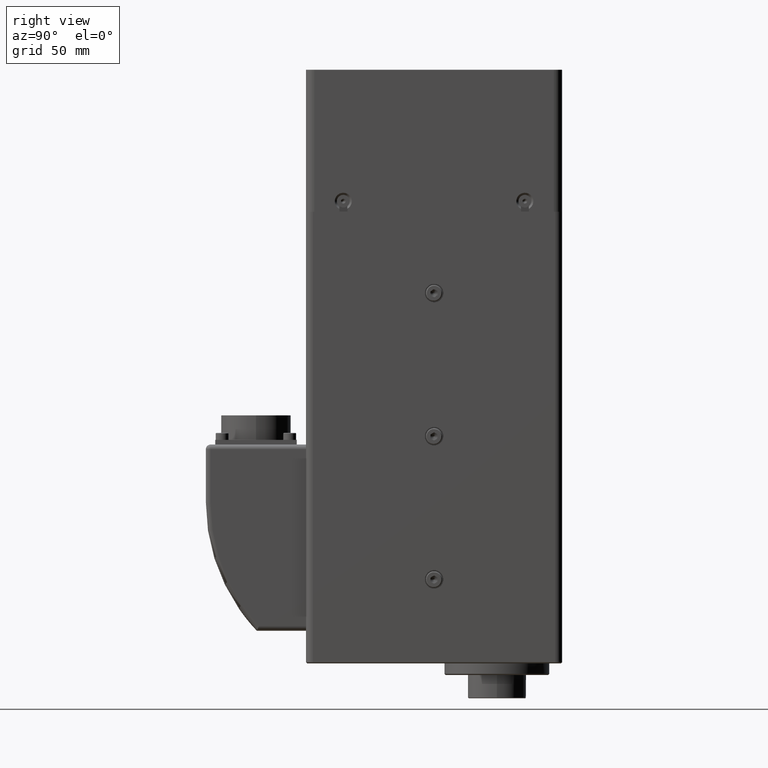
[diagram: clean part render]
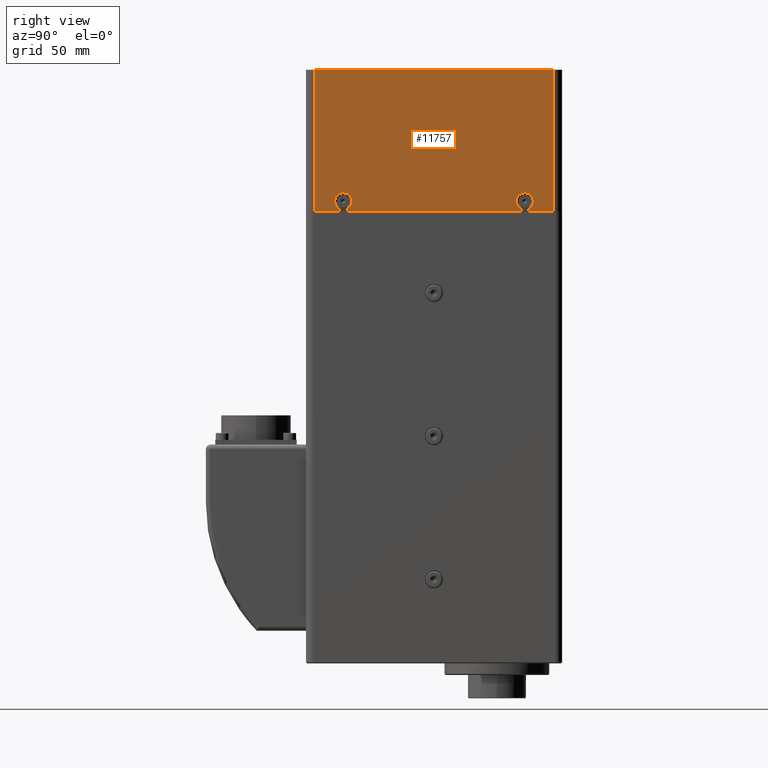
[diagram: same view with one face highlighted and labeled with its STEP entity id]
A machine part, right view. The second image highlights one B-rep face of the part: STEP entity #11757.
In plain terms, the highlighted planar face has unit normal (1, 0, 0).
Its self-contained STEP definition (entity closure, byte-faithful):
#1039=CIRCLE('',#12885,3.65);
#1040=CIRCLE('',#12887,3.65000000000002);
#1636=FACE_OUTER_BOUND('',#2415,.T.);
#2415=EDGE_LOOP('',(#9358,#9359,#9360,#9361,#9362,#9363,#9364,#9365,#9366,
#9367,#9368,#9369));
#3088=LINE('',#18473,#3970);
#3090=LINE('',#18477,#3972);
#3092=LINE('',#18481,#3974);
#3300=LINE('',#19464,#4182);
#3304=LINE('',#19475,#4186);
#3308=LINE('',#19486,#4190);
#3318=LINE('',#19548,#4200);
#3319=LINE('',#19549,#4201);
#3320=LINE('',#19550,#4202);
#3321=LINE('',#19551,#4203);
#3970=VECTOR('',#14642,10.);
#3972=VECTOR('',#14644,10.);
#3974=VECTOR('',#14646,10.);
#4182=VECTOR('',#15604,10.);
#4186=VECTOR('',#15616,10.);
#4190=VECTOR('',#15628,10.);
#4200=VECTOR('',#15670,10.);
#4201=VECTOR('',#15671,10.);
#4202=VECTOR('',#15672,10.);
#4203=VECTOR('',#15673,10.);
#4919=VERTEX_POINT('',#18470);
#4920=VERTEX_POINT('',#18472);
#4921=VERTEX_POINT('',#18474);
#4922=VERTEX_POINT('',#18476);
#4923=VERTEX_POINT('',#18478);
#4924=VERTEX_POINT('',#18480);
#5156=VERTEX_POINT('',#19462);
#5159=VERTEX_POINT('',#19474);
#5167=VERTEX_POINT('',#19508);
#5168=VERTEX_POINT('',#19512);
#5169=VERTEX_POINT('',#19518);
#5170=VERTEX_POINT('',#19522);
#6184=EDGE_CURVE('',#4920,#4919,#3088,.T.);
#6186=EDGE_CURVE('',#4922,#4921,#3090,.T.);
#6188=EDGE_CURVE('',#4924,#4923,#3092,.T.);
#6599=EDGE_CURVE('',#5156,#4919,#3300,.T.);
#6604=EDGE_CURVE('',#4924,#5159,#3304,.T.);
#6610=EDGE_CURVE('',#5156,#5159,#3308,.F.);
#6624=EDGE_CURVE('',#5167,#5168,#1039,.T.);
#6627=EDGE_CURVE('',#5169,#5170,#1040,.T.);
#6634=EDGE_CURVE('',#4921,#5167,#3318,.T.);
#6635=EDGE_CURVE('',#5168,#4920,#3319,.T.);
#6636=EDGE_CURVE('',#4923,#5169,#3320,.T.);
#6637=EDGE_CURVE('',#5170,#4922,#3321,.T.);
#9358=ORIENTED_EDGE('',*,*,#6634,.T.);
#9359=ORIENTED_EDGE('',*,*,#6624,.T.);
#9360=ORIENTED_EDGE('',*,*,#6635,.T.);
#9361=ORIENTED_EDGE('',*,*,#6184,.T.);
#9362=ORIENTED_EDGE('',*,*,#6599,.F.);
#9363=ORIENTED_EDGE('',*,*,#6610,.T.);
#9364=ORIENTED_EDGE('',*,*,#6604,.F.);
#9365=ORIENTED_EDGE('',*,*,#6188,.T.);
#9366=ORIENTED_EDGE('',*,*,#6636,.T.);
#9367=ORIENTED_EDGE('',*,*,#6627,.T.);
#9368=ORIENTED_EDGE('',*,*,#6637,.T.);
#9369=ORIENTED_EDGE('',*,*,#6186,.T.);
#10495=PLANE('',#12892);
#11757=ADVANCED_FACE('',(#1636),#10495,.T.);
#12885=AXIS2_PLACEMENT_3D('',#19516,#15654,#15655);
#12887=AXIS2_PLACEMENT_3D('',#19526,#15658,#15659);
#12892=AXIS2_PLACEMENT_3D('',#19547,#15668,#15669);
#14642=DIRECTION('',(-8.07434927000114E-17,1.,0.));
#14644=DIRECTION('',(-8.07434927000114E-17,1.,0.));
#14646=DIRECTION('',(-8.07434927000114E-17,1.,0.));
#15604=DIRECTION('',(3.69778549322349E-32,-4.27720537051104E-16,-1.));
#15616=DIRECTION('',(-3.69778549322349E-32,4.27720537051104E-16,1.));
#15628=DIRECTION('',(-5.19610645838019E-32,1.,-4.27720537051104E-16));
#15654=DIRECTION('center_axis',(-1.,-5.1961064583802E-32,-3.69778549322349E-32));
#15655=DIRECTION('ref_axis',(-5.19610645838019E-32,1.,-4.27720537051104E-16));
#15658=DIRECTION('center_axis',(-1.,-5.1961064583802E-32,-3.69778549322349E-32));
#15659=DIRECTION('ref_axis',(-5.19610645838019E-32,1.,-4.27720537051104E-16));
#15668=DIRECTION('center_axis',(1.,5.1961064583802E-32,3.69778549322349E-32));
#15669=DIRECTION('ref_axis',(5.19610645838019E-32,-1.,4.27720537051104E-16));
#15670=DIRECTION('',(-3.69778549322349E-32,4.27720537051104E-16,1.));
#15671=DIRECTION('',(3.69778549322349E-32,-4.27720537051104E-16,-1.));
#15672=DIRECTION('',(-3.69778549322349E-32,8.57002145945891E-17,1.));
#15673=DIRECTION('',(3.69778549322349E-32,-8.57002145945891E-17,-1.));
#18470=CARTESIAN_POINT('',(24.5,24.4,180.));
#18472=CARTESIAN_POINT('',(24.5,13.7,180.));
#18473=CARTESIAN_POINT('',(24.5,28.,180.));
#18474=CARTESIAN_POINT('',(24.5,10.3,180.));
#18476=CARTESIAN_POINT('',(24.5,-64.3,180.));
#18477=CARTESIAN_POINT('',(24.5,28.,180.));
#18478=CARTESIAN_POINT('',(24.5,-67.7,180.));
#18480=CARTESIAN_POINT('',(24.5,-78.4,180.));
#18481=CARTESIAN_POINT('',(24.5,28.,180.));
#19462=CARTESIAN_POINT('',(24.5,24.4,241.));
#19464=CARTESIAN_POINT('',(24.5,24.4,239.4));
#19474=CARTESIAN_POINT('',(24.5,-78.4,241.));
#19475=CARTESIAN_POINT('',(24.5,-78.4,239.4));
#19486=CARTESIAN_POINT('',(24.5,-0.299999999999976,241.));
#19508=CARTESIAN_POINT('',(24.5,10.3,181.270061920098));
#19512=CARTESIAN_POINT('',(24.5,13.7,181.270061920098));
#19516=CARTESIAN_POINT('Origin',(24.5,12.,184.5));
#19518=CARTESIAN_POINT('',(24.5,-67.7,181.270061920098));
#19522=CARTESIAN_POINT('',(24.5,-64.3,181.270061920098));
#19526=CARTESIAN_POINT('Origin',(24.5,-66.,184.5));
#19547=CARTESIAN_POINT('Origin',(24.5,26.4,239.4));
#19548=CARTESIAN_POINT('',(24.5,10.3,206.943823007385));
#19549=CARTESIAN_POINT('',(24.5,13.7,211.95));
#19550=CARTESIAN_POINT('',(24.5,-67.7,205.457853471097));
#19551=CARTESIAN_POINT('',(24.5,-64.3,211.95));